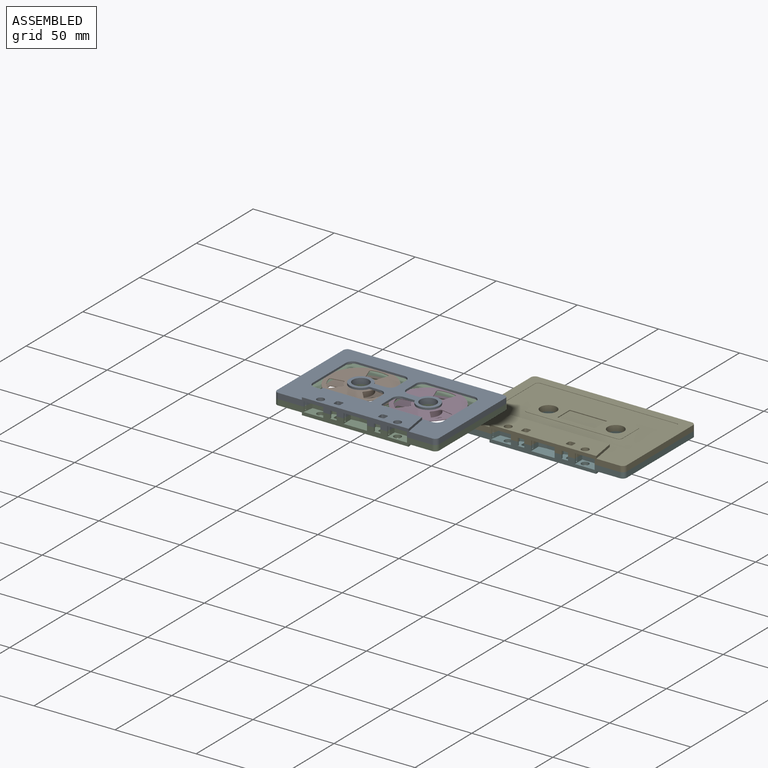
[diagram: assembled view]
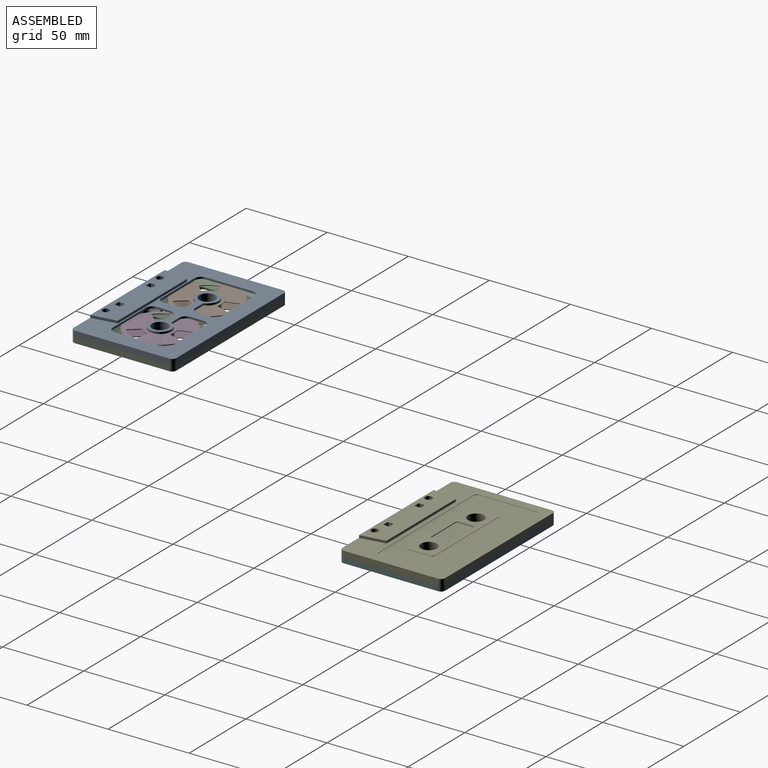
[diagram: assembled view, second angle]
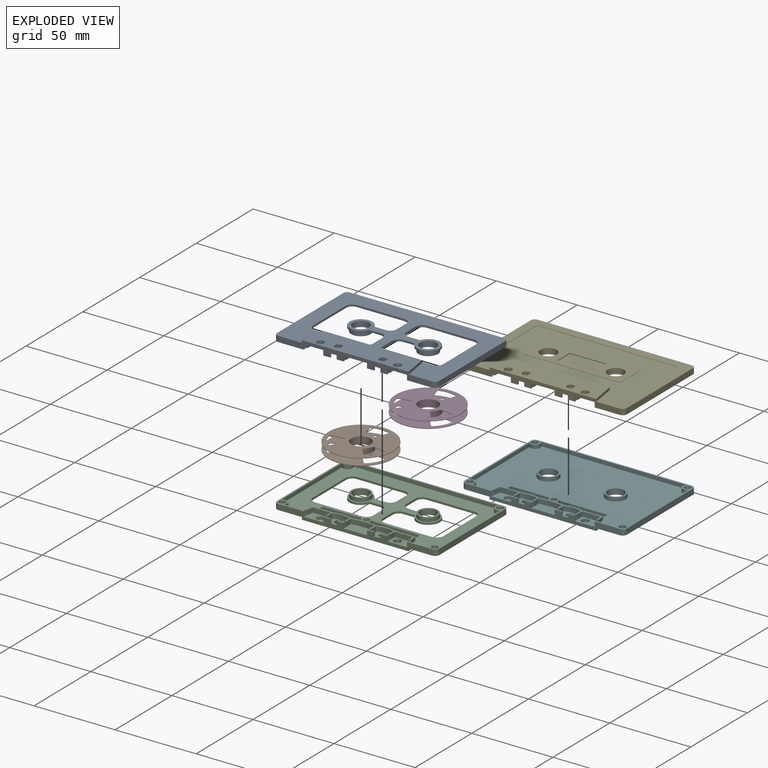
[diagram: exploded view]
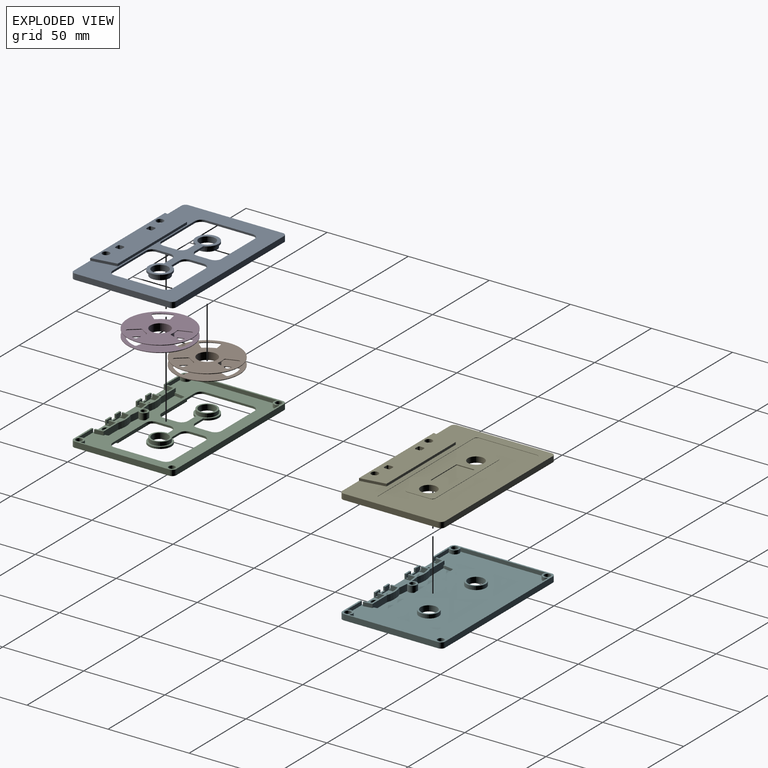
[diagram: exploded view, second angle]
ASSEMBLY  parts=6 mates=4
PART A: 142 faces, bbox 100x63.3x5 mm
  f0: plane 98x61.31mm, normal (0,0,1), area 2566.6mm2, adj f11,f12,f13,f14,f15,f62,f70,f79
  f1: plane 4.24x1mm, normal (0,0,1), area 4.2mm2, adj f6,f64,f72,f104
  f2: plane 100x63.31mm, normal (0,0,1), area 291.8mm2, adj f6,f11,f12,f13,f14,f15,f37,f38
  f3: plane 65.18x10.8mm, normal (0,0,1), area 102.5mm2, adj f7,f8,f9,f10,f60,f61,f62,f63
  f4: plane 4.25x1mm, normal (0,0,1), area 4.3mm2, adj f6,f68,f71,f109
  f5: plane 4.25x1mm, normal (0,0,1), area 4.2mm2, adj f6,f67,f71,f108
  f6: plane 95x5mm, normal (0,-1,0), area 296.4mm2, adj f1,f2,f4,f5,f17,f18,f19,f20
  f7: plane 5.5x3mm, normal (1,0,0), area 14mm2, adj f3,f48,f72,f73,f112,f113
  f8: plane 5.5x3mm, normal (1,0,0), area 14.1mm2, adj f3,f21,f60,f71,f110,f111
  f9: plane 5.5x3mm, normal (-1,0,0), area 14.1mm2, adj f3,f21,f60,f71,f105,f106
  f10: plane 5.5x3mm, normal (-1,0,0), area 13.9mm2, adj f3,f48,f72,f73,f100,f101
  f11: plane 13.02x2.3mm, normal (0,1,0), area 29.9mm2, adj f0,f2,f70,f88
  f12: plane 13.02x2.3mm, normal (0,1,0), area 29.9mm2, adj f0,f2,f62,f89
  f13: plane 52.84x2.3mm, normal (-1,0,0), area 121.5mm2, adj f0,f2,f89,f90
  f14: plane 89.53x2.3mm, normal (0,-1,0), area 205.9mm2, adj f0,f2,f90,f91
  f15: plane 52.84x2.3mm, normal (1,0,0), area 121.5mm2, adj f0,f2,f88,f91
  f16: plane 12x12mm, normal (0,0,1), area 34.6mm2, adj f53,f86
  f17: plane 4.26x1mm, normal (0,0,1), area 4.3mm2, adj f6,f65,f72,f103
  f18: plane 12.17x6.5mm, normal (0,0,1), area 59.9mm2, adj f6,f43,f62,f63,f64
  f19: plane 12.17x6.5mm, normal (0,0,1), area 59.9mm2, adj f6,f44,f68,f69,f70
  f20: plane 14.48x7.1mm, normal (0,0,1), area 99.9mm2, adj f6,f65,f66,f67
  f21: plane 10.5x6.37mm, normal (0,0,1), area 48.7mm2, adj f8,f9,f23,f24,f25,f26,f27,f28
  f22: plane 100x63.31mm, normal (0,0,-1), area 2898.6mm2, adj f6,f37,f38,f39,f40,f41,f42,f46
  f23: cylinder r=1mm len=2mm, axis (0,0,1), area 3.1mm2, adj f21,f24,f47,f49
  f24: plane 2x2mm, normal (0,1,0), area 4mm2, adj f21,f23,f25,f49
  f25: cylinder r=1mm len=2mm, axis (0,0,1), area 3.1mm2, adj f21,f24,f26,f49
  f26: plane 2x2mm, normal (1,0,0), area 4mm2, adj f21,f25,f27,f49
  f27: cylinder r=1mm len=2mm, axis (0,0,1), area 3.1mm2, adj f21,f26,f28,f49
  f28: plane 2x2mm, normal (0,-1,0), area 4mm2, adj f21,f27,f29,f49
  f29: cylinder r=1mm len=2mm, axis (0,0,1), area 3.1mm2, adj f21,f28,f47,f49
  f30: plane 2x2mm, normal (0,-1,0), area 4mm2, adj f31,f45,f48,f49
  f31: cylinder r=1mm len=2mm, axis (0,0,1), area 3.1mm2, adj f30,f32,f48,f49
  f32: plane 2x2mm, normal (-1,0,0), area 4mm2, adj f31,f33,f48,f49
  f33: cylinder r=1mm len=2mm, axis (0,0,1), area 3.1mm2, adj f32,f34,f48,f49
  f34: plane 2x2mm, normal (0,1,0), area 4mm2, adj f33,f35,f48,f49
  f35: cylinder r=1mm len=2mm, axis (0,0,1), area 3.1mm2, adj f34,f36,f48,f49
  f36: plane 2x2mm, normal (1,0,0), area 4mm2, adj f35,f45,f48,f49
  f37: cylinder r=2.5mm len=3.5mm, axis (0,0,1), area 13.7mm2, adj f2,f6,f22,f38
  f38: plane 58.31x3.5mm, normal (1,0,0), area 204.1mm2, adj f2,f22,f37,f39
  f39: cylinder r=2.5mm len=3.5mm, axis (0,0,1), area 13.7mm2, adj f2,f22,f38,f40
  f40: plane 95x3.5mm, normal (0,1,0), area 332.5mm2, adj f2,f22,f39,f41
  f41: cylinder r=2.5mm len=3.5mm, axis (0,0,1), area 13.7mm2, adj f2,f22,f40,f42
  f42: plane 58.31x3.5mm, normal (-1,0,0), area 204.1mm2, adj f2,f22,f41,f46
  f43: cylinder r=2.25mm len=4.5mm, axis (0,0,1), area 28.3mm2, adj f18,f49
  f44: cylinder r=2.25mm len=4.5mm, axis (0,0,1), area 28.3mm2, adj f19,f49
  f45: cylinder r=1mm len=2mm, axis (0,0,1), area 3.1mm2, adj f30,f36,f48,f49
  f46: cylinder r=2.5mm len=3.5mm, axis (0,0,1), area 13.7mm2, adj f2,f6,f22,f42
  f47: plane 2x2mm, normal (-1,0,0), area 4mm2, adj f21,f23,f29,f49
  f48: plane 10.5x6.37mm, normal (0,0,1), area 48.7mm2, adj f7,f10,f30,f31,f32,f33,f34,f35
  f49: plane 65.84x15.31mm, normal (0,0,-1), area 908.9mm2, adj f6,f23,f24,f25,f26,f27,f28,f29
  f50: plane 61x1.5mm, normal (0,1,0), area 91.5mm2, adj f22,f49,f51,f52
  f51: plane 15.31x2.42mm, normal (-0.99,0.16,0), area 23.2mm2, adj f6,f22,f49,f50
  f52: plane 15.31x2.42mm, normal (0.99,0.16,0), area 23.2mm2, adj f6,f22,f49,f50
  f53: cylinder r=5mm len=10mm, axis (0,0,1), area 110mm2, adj f16,f22
  f54: cylinder r=5mm len=10mm, axis (0,0,1), area 110mm2, adj f22,f55
  f55: plane 12x12mm, normal (0,0,1), area 34.6mm2, adj f54,f87
  f56: cylinder r=2mm len=4mm, axis (0,0,-1), area 37.7mm2, adj f2,f78
  f57: cylinder r=2mm len=4mm, axis (0,0,-1), area 37.7mm2, adj f2,f77
  f58: cylinder r=2mm len=4mm, axis (0,0,-1), area 37.7mm2, adj f2,f76
  f59: cylinder r=2mm len=4mm, axis (0,0,-1), area 37.7mm2, adj f2,f75
  f60: cylinder r=16.26mm len=10.5mm, axis (0,0,-1), area 32.1mm2, adj f3,f8,f9,f21
  f61: cylinder r=1.8mm len=3.59mm, axis (0,0,-1), area 33.9mm2, adj f3,f74
  f62: plane 6.5x3mm, normal (-0.99,-0.16,0), area 17mm2, adj f0,f2,f3,f6,f12,f18,f63,f99
  f63: plane 11.14x3mm, normal (0,-1,0), area 33.4mm2, adj f3,f18,f62,f64
  f64: plane 6.5x3mm, normal (1,0,0), area 16.9mm2, adj f1,f3,f6,f18,f63,f72,f100,f101
  f65: plane 6.5x3mm, normal (-1,0,0), area 17mm2, adj f3,f6,f17,f20,f66,f72,f112,f113
  f66: cylinder r=43.69mm len=14.48mm, axis (0,0,-1), area 43.6mm2, adj f3,f20,f65,f67
  f67: plane 6.5x3mm, normal (1,0,0), area 17mm2, adj f3,f5,f6,f20,f66,f71,f105,f106
  f68: plane 6.5x3mm, normal (-1,0,0), area 17.1mm2, adj f3,f4,f6,f19,f69,f71,f110,f111
  f69: plane 11.14x3mm, normal (0,-1,0), area 33.4mm2, adj f3,f19,f68,f70
  f70: plane 6.5x3mm, normal (0.99,-0.16,0), area 17.4mm2, adj f0,f2,f3,f6,f11,f19,f69,f98
  f71: plane 12.5x3mm, normal (0,1,0), area 26.9mm2, adj f4,f5,f8,f9,f21,f67,f68,f106
  f72: plane 12.5x3mm, normal (0,1,0), area 26.9mm2, adj f1,f7,f10,f17,f48,f64,f65,f101
  f73: cylinder r=16.26mm len=10.5mm, axis (0,0,-1), area 32.1mm2, adj f3,f7,f10,f48
  f74: plane 3.59x3.59mm, normal (0,0,1), area 10.1mm2, adj f61
  f75: plane 4x4mm, normal (0,0,1), area 12.6mm2, adj f59
  f76: plane 4x4mm, normal (0,0,1), area 12.6mm2, adj f58
  f77: plane 4x4mm, normal (0,0,1), area 12.6mm2, adj f57
  f78: plane 4x4mm, normal (0,0,1), area 12.6mm2, adj f56
  f79: plane 12.83x4mm, normal (0,1,0), area 49.6mm2, adj f0,f3,f80,f84,f92,f96
  f80: plane 61.44x6.9mm, normal (0,0,1), area 370.6mm2, adj f79,f81,f82,f83,f84,f85,f92,f93
  f81: plane 12.83x4mm, normal (0,1,0), area 49.6mm2, adj f0,f3,f80,f85,f94,f97
  f82: cylinder r=44.69mm len=5.81mm, axis (0,0,-1), area 23.4mm2, adj f3,f80,f92,f93
  f83: plane 59.29x1.7mm, normal (0,-1,0), area 100.8mm2, adj f0,f80,f84,f85
  f84: plane 6.81x1.7mm, normal (0.99,-0.16,0), area 11.7mm2, adj f0,f79,f80,f83
  f85: plane 6.81x1.7mm, normal (-0.99,-0.16,0), area 11.7mm2, adj f0,f80,f81,f83
  f86: cylinder r=6mm len=12mm, axis (0,0,1), area 86.7mm2, adj f0,f16
  f87: cylinder r=6mm len=12mm, axis (0,0,1), area 86.7mm2, adj f0,f55
  f88: cylinder r=3mm len=5mm, axis (0,0,-1), area 20.9mm2, adj f0,f2,f11,f15
  f89: cylinder r=3mm len=5mm, axis (0,0,-1), area 20.9mm2, adj f0,f2,f12,f13
  f90: cylinder r=3mm len=5mm, axis (0,0,-1), area 20.9mm2, adj f0,f2,f13,f14
  f91: cylinder r=3mm len=5mm, axis (0,0,-1), area 20.9mm2, adj f0,f2,f14,f15
  f92: cylinder r=17.26mm len=11.08mm, axis (0,0,-1), area 45.1mm2, adj f3,f79,f80,f82
  f93: cylinder r=2.8mm len=5.59mm, axis (0,0,-1), area 52.3mm2, adj f3,f80,f82,f95
  f94: plane 5.33x2.3mm, normal (0.99,0.16,0), area 12.4mm2, adj f0,f3,f81,f99
  f95: cylinder r=44.69mm len=5.81mm, axis (0,0,-1), area 23.4mm2, adj f3,f80,f93,f97
  f96: plane 5.5x2.3mm, normal (-0.99,0.16,0), area 12.8mm2, adj f0,f3,f79,f98
  f97: cylinder r=17.26mm len=11.08mm, axis (0,0,-1), area 45.1mm2, adj f3,f80,f81,f95
  f98: plane 2.3x1.01mm, normal (0,-1,0), area 2.3mm2, adj f0,f3,f70,f96
  f99: plane 2.3x1.01mm, normal (0,-1,0), area 2.3mm2, adj f0,f3,f62,f94
  f100: plane 2.3x1mm, normal (0,-1,0), area 2.3mm2, adj f3,f10,f64,f101
  f101: plane 1.14x1mm, normal (0,0,1), area 1.1mm2, adj f10,f64,f72,f100
  f102: plane 4x1mm, normal (0,0,1), area 4mm2, adj f6,f72,f103,f104
  f103: plane 2.3x1mm, normal (1,0,0), area 2.3mm2, adj f6,f17,f72,f102
  f104: plane 2.3x1mm, normal (-1,0,0), area 2.3mm2, adj f1,f6,f72,f102
  f105: plane 2.3x1mm, normal (0,-1,0), area 2.3mm2, adj f3,f9,f67,f106
  f106: plane 1.07x1mm, normal (0,0,1), area 1.1mm2, adj f9,f67,f71,f105
  f107: plane 4x1mm, normal (0,0,1), area 4mm2, adj f6,f71,f108,f109
  f108: plane 2.3x1mm, normal (-1,0,0), area 2.3mm2, adj f5,f6,f71,f107
  f109: plane 2.3x1mm, normal (1,0,0), area 2.3mm2, adj f4,f6,f71,f107
  f110: plane 2.3x1mm, normal (0,-1,0), area 2.3mm2, adj f3,f8,f68,f111
  f111: plane 1.04x1mm, normal (0,0,1), area 1mm2, adj f8,f68,f71,f110
  f112: plane 1.11x1mm, normal (0,0,1), area 1.1mm2, adj f7,f65,f72,f113
  f113: plane 2.3x1mm, normal (0,-1,0), area 2.3mm2, adj f3,f7,f65,f112
  f114: plane 29.15x1.2mm, normal (0,-1,0), area 35mm2, adj f0,f22,f115,f127
  f115: cylinder r=4mm len=4mm, axis (0,0,1), area 7.5mm2, adj f0,f22,f114,f116
  f116: plane 28.96x1.2mm, normal (1,0,0), area 34.7mm2, adj f0,f22,f115,f117
  f117: cylinder r=4mm len=4mm, axis (0,0,1), area 7.5mm2, adj f0,f22,f116,f118
  f118: plane 29.15x1.2mm, normal (0,1,0), area 35mm2, adj f0,f22,f117,f119
  f119: cylinder r=4mm len=4mm, axis (0,0,1), area 7.5mm2, adj f0,f22,f118,f120
  f120: plane 8.23x1.2mm, normal (-1,0,0), area 9.9mm2, adj f0,f22,f119,f121
  f121: cylinder r=4mm len=4mm, axis (0,0,1), area 7.5mm2, adj f0,f22,f120,f122
  f122: plane 7.12x1.2mm, normal (0,-1,0), area 8.5mm2, adj f0,f22,f121,f123
  f123: cylinder r=7mm len=14mm, axis (0,0,1), area 47.3mm2, adj f0,f22,f122,f124
  f124: plane 7.12x1.2mm, normal (0,1,0), area 8.5mm2, adj f0,f22,f123,f125
  f125: cylinder r=4mm len=4mm, axis (0,0,1), area 7.5mm2, adj f0,f22,f124,f126
  f126: plane 8.23x1.2mm, normal (-1,0,0), area 9.9mm2, adj f0,f22,f125,f127
  f127: cylinder r=4mm len=4mm, axis (0,0,1), area 7.5mm2, adj f0,f22,f114,f126
  f128: plane 28.96x1.2mm, normal (-1,0,0), area 34.7mm2, adj f0,f22,f129,f141
  f129: cylinder r=4mm len=4mm, axis (0,0,1), area 7.5mm2, adj f0,f22,f128,f130
  f130: plane 29.15x1.2mm, normal (0,-1,0), area 35mm2, adj f0,f22,f129,f131
  f131: cylinder r=4mm len=4mm, axis (0,0,1), area 7.5mm2, adj f0,f22,f130,f132
  f132: plane 8.23x1.2mm, normal (1,0,0), area 9.9mm2, adj f0,f22,f131,f133
  f133: cylinder r=4mm len=4mm, axis (0,0,1), area 7.5mm2, adj f0,f22,f132,f134
  f134: plane 7.12x1.2mm, normal (0,1,0), area 8.5mm2, adj f0,f22,f133,f135
  f135: cylinder r=7mm len=14mm, axis (0,0,1), area 47.3mm2, adj f0,f22,f134,f136
  f136: plane 7.12x1.2mm, normal (0,-1,0), area 8.5mm2, adj f0,f22,f135,f137
  f137: cylinder r=4mm len=4mm, axis (0,0,1), area 7.5mm2, adj f0,f22,f136,f138
  f138: plane 8.23x1.2mm, normal (1,0,0), area 9.9mm2, adj f0,f22,f137,f139
  f139: cylinder r=4mm len=4mm, axis (0,0,1), area 7.5mm2, adj f0,f22,f138,f140
  f140: plane 29.15x1.2mm, normal (0,1,0), area 35mm2, adj f0,f22,f139,f141
  f141: cylinder r=4mm len=4mm, axis (0,0,1), area 7.5mm2, adj f0,f22,f128,f140
PART B: 56 faces, bbox 40x40x4.5 mm
  f0: plane 40x40mm, normal (0,0,1), area 903.9mm2, adj f4,f5,f32,f33,f34,f35,f36,f37
  f1: plane 40x40mm, normal (0,0,-1), area 855mm2, adj f4,f6,f32,f33,f34,f35,f36,f37
  f2: plane 40x40mm, normal (0,0,-1), area 903.9mm2, adj f5,f7,f8,f9,f10,f11,f12,f13
  f3: plane 40x40mm, normal (0,0,1), area 855mm2, adj f6,f7,f8,f9,f10,f11,f12,f13
  f4: cylinder r=20mm len=40mm, axis (0,0,-1), area 40.8mm2, adj f0,f1
  f5: cylinder r=6mm len=12mm, axis (0,0,-1), area 169.6mm2, adj f0,f2
  f6: cylinder r=7.18mm len=14.36mm, axis (0,0,-1), area 173.7mm2, adj f1,f3
  f7: cylinder r=20mm len=40mm, axis (0,0,-1), area 40.8mm2, adj f2,f3
  f8: cylinder r=1mm len=1.35mm, axis (0,0,-1), area 0.5mm2, adj f2,f3,f9,f15
  f9: plane 5.11x4.3mm, normal (-0.76,0.64,0), area 2.2mm2, adj f2,f3,f8,f10
  f10: cylinder r=1mm len=1.45mm, axis (0,0,-1), area 0.5mm2, adj f2,f3,f9,f11
  f11: cylinder r=17.49mm len=8.72mm, axis (0,0,-1), area 3.3mm2, adj f2,f3,f10,f12
  f12: cylinder r=1mm len=1.21mm, axis (0,0,-1), area 0.5mm2, adj f2,f3,f11,f13
  f13: plane 6.57x1.17mm, normal (0.18,-0.98,0), area 2.2mm2, adj f2,f3,f12,f14
  f14: cylinder r=1mm len=1.14mm, axis (0,0,-1), area 0.5mm2, adj f2,f3,f13,f15
  f15: cylinder r=8.83mm len=3.85mm, axis (0,0,-1), area 1.5mm2, adj f2,f3,f8,f14
  f16: cylinder r=1mm len=1.14mm, axis (0,0,-1), area 0.5mm2, adj f2,f3,f17,f23
  f17: plane 6.57x1.17mm, normal (-0.18,-0.98,0), area 2.2mm2, adj f2,f3,f16,f18
  f18: cylinder r=1mm len=1.21mm, axis (0,0,-1), area 0.5mm2, adj f2,f3,f17,f19
  f19: cylinder r=17.49mm len=8.72mm, axis (0,0,-1), area 3.3mm2, adj f2,f3,f18,f20
  f20: cylinder r=1mm len=1.45mm, axis (0,0,-1), area 0.5mm2, adj f2,f3,f19,f21
  f21: plane 5.11x4.3mm, normal (0.76,0.64,0), area 2.2mm2, adj f2,f3,f20,f22
  f22: cylinder r=1mm len=1.35mm, axis (0,0,-1), area 0.5mm2, adj f2,f3,f21,f23
  f23: cylinder r=8.83mm len=3.85mm, axis (0,0,-1), area 1.5mm2, adj f2,f3,f16,f22
  f24: cylinder r=1mm len=1.19mm, axis (0,0,-1), area 0.5mm2, adj f2,f3,f25,f31
  f25: plane 6.28x2.27mm, normal (0.94,0.34,0), area 2.2mm2, adj f2,f3,f24,f26
  f26: cylinder r=1mm len=1.3mm, axis (0,0,-1), area 0.5mm2, adj f2,f3,f25,f27
  f27: cylinder r=17.49mm len=10.07mm, axis (0,0,-1), area 3.3mm2, adj f2,f3,f26,f28
  f28: cylinder r=1mm len=1.3mm, axis (0,0,-1), area 0.5mm2, adj f2,f3,f27,f29
  f29: plane 6.28x2.27mm, normal (-0.94,0.34,0), area 2.2mm2, adj f2,f3,f28,f30
  f30: cylinder r=1mm len=1.19mm, axis (0,0,-1), area 0.5mm2, adj f2,f3,f29,f31
  f31: cylinder r=8.83mm len=4.45mm, axis (0,0,-1), area 1.5mm2, adj f2,f3,f24,f30
  f32: cylinder r=8.83mm len=3.85mm, axis (0,0,-1), area 1.5mm2, adj f0,f1,f33,f39
  f33: cylinder r=1mm len=1.14mm, axis (0,0,-1), area 0.5mm2, adj f0,f1,f32,f34
  f34: plane 6.57x1.17mm, normal (0.18,-0.98,0), area 2.2mm2, adj f0,f1,f33,f35
  f35: cylinder r=1mm len=1.21mm, axis (0,0,-1), area 0.5mm2, adj f0,f1,f34,f36
  f36: cylinder r=17.49mm len=8.72mm, axis (0,0,-1), area 3.3mm2, adj f0,f1,f35,f37
  f37: cylinder r=1mm len=1.45mm, axis (0,0,-1), area 0.5mm2, adj f0,f1,f36,f38
  f38: plane 5.11x4.3mm, normal (-0.76,0.64,0), area 2.2mm2, adj f0,f1,f37,f39
  f39: cylinder r=1mm len=1.35mm, axis (0,0,-1), area 0.5mm2, adj f0,f1,f32,f38
  f40: cylinder r=8.83mm len=3.85mm, axis (0,0,-1), area 1.5mm2, adj f0,f1,f41,f47
  f41: cylinder r=1mm len=1.35mm, axis (0,0,-1), area 0.5mm2, adj f0,f1,f40,f42
  f42: plane 5.11x4.3mm, normal (0.76,0.64,0), area 2.2mm2, adj f0,f1,f41,f43
  f43: cylinder r=1mm len=1.45mm, axis (0,0,-1), area 0.5mm2, adj f0,f1,f42,f44
  f44: cylinder r=17.49mm len=8.72mm, axis (0,0,-1), area 3.3mm2, adj f0,f1,f43,f45
  f45: cylinder r=1mm len=1.21mm, axis (0,0,-1), area 0.5mm2, adj f0,f1,f44,f46
  f46: plane 6.57x1.17mm, normal (-0.18,-0.98,0), area 2.2mm2, adj f0,f1,f45,f47
  f47: cylinder r=1mm len=1.14mm, axis (0,0,-1), area 0.5mm2, adj f0,f1,f40,f46
  f48: cylinder r=8.83mm len=4.45mm, axis (0,0,-1), area 1.5mm2, adj f0,f1,f49,f55
  f49: cylinder r=1mm len=1.19mm, axis (0,0,-1), area 0.5mm2, adj f0,f1,f48,f50
  f50: plane 6.28x2.27mm, normal (-0.94,0.34,0), area 2.2mm2, adj f0,f1,f49,f51
  f51: cylinder r=1mm len=1.3mm, axis (0,0,-1), area 0.5mm2, adj f0,f1,f50,f52
  f52: cylinder r=17.49mm len=10.07mm, axis (0,0,-1), area 3.3mm2, adj f0,f1,f51,f53
  f53: cylinder r=1mm len=1.3mm, axis (0,0,-1), area 0.5mm2, adj f0,f1,f52,f54
  f54: plane 6.28x2.27mm, normal (0.94,0.34,0), area 2.2mm2, adj f0,f1,f53,f55
  f55: cylinder r=1mm len=1.19mm, axis (0,0,-1), area 0.5mm2, adj f0,f1,f48,f54
PART C: same geometry as A
PART D: same geometry as B
PART E: 137 faces, bbox 100x63.3x5 mm
  f0: plane 4.24x1mm, normal (0,0,1), area 4.2mm2, adj f5,f84,f92,f127
  f1: plane 100x63.31mm, normal (0,0,1), area 291.8mm2, adj f5,f10,f11,f12,f13,f14,f43,f44
  f2: plane 65.18x10.8mm, normal (0,0,1), area 102.5mm2, adj f6,f7,f8,f9,f80,f81,f82,f83
  f3: plane 4.25x1mm, normal (0,0,1), area 4.3mm2, adj f5,f88,f91,f132
  f4: plane 4.25x1mm, normal (0,0,1), area 4.2mm2, adj f5,f87,f91,f131
  f5: plane 95x5mm, normal (0,-1,0), area 296.4mm2, adj f0,f1,f3,f4,f16,f19,f20,f21
  f6: plane 5.5x3mm, normal (1,0,0), area 14mm2, adj f2,f55,f92,f93,f135,f136
  f7: plane 5.5x3mm, normal (1,0,0), area 14.1mm2, adj f2,f22,f80,f91,f133,f134
  f8: plane 5.5x3mm, normal (-1,0,0), area 14.1mm2, adj f2,f22,f80,f91,f128,f129
  f9: plane 5.5x3mm, normal (-1,0,0), area 13.9mm2, adj f2,f55,f92,f93,f123,f124
  f10: plane 13.02x2.3mm, normal (0,1,0), area 29.9mm2, adj f1,f90,f110,f120
  f11: plane 13.02x2.3mm, normal (0,1,0), area 29.9mm2, adj f1,f82,f111,f120
  f12: plane 52.84x2.3mm, normal (-1,0,0), area 121.5mm2, adj f1,f111,f112,f120
  f13: plane 89.53x2.3mm, normal (0,-1,0), area 205.9mm2, adj f1,f112,f113,f120
  f14: plane 52.84x2.3mm, normal (1,0,0), area 121.5mm2, adj f1,f110,f113,f120
  f15: plane 12x12mm, normal (0,0,1), area 34.6mm2, adj f72,f108
  f16: plane 4.26x1mm, normal (0,0,1), area 4.3mm2, adj f5,f85,f92,f126
  f17: plane 84x0.2mm, normal (0,-1,0), area 16.8mm2, adj f23,f39,f40,f94
  f18: plane 84x0.2mm, normal (0,1,0), area 16.8mm2, adj f23,f42,f52,f94
  f19: plane 12.17x6.5mm, normal (0,0,1), area 59.9mm2, adj f5,f49,f82,f83,f84
  f20: plane 12.17x6.5mm, normal (0,0,1), area 59.9mm2, adj f5,f50,f88,f89,f90
  f21: plane 14.48x7.1mm, normal (0,0,1), area 99.9mm2, adj f5,f85,f86,f87
  f22: plane 10.5x6.37mm, normal (0,0,1), area 48.7mm2, adj f7,f8,f24,f25,f26,f27,f28,f29
  f23: plane 100x63.31mm, normal (0,0,-1), area 1882.1mm2, adj f5,f17,f18,f38,f39,f40,f41,f42
  f24: cylinder r=1mm len=2mm, axis (0,0,1), area 3.1mm2, adj f22,f25,f54,f56
  f25: plane 2x2mm, normal (0,1,0), area 4mm2, adj f22,f24,f26,f56
  f26: cylinder r=1mm len=2mm, axis (0,0,1), area 3.1mm2, adj f22,f25,f27,f56
  f27: plane 2x2mm, normal (1,0,0), area 4mm2, adj f22,f26,f28,f56
  f28: cylinder r=1mm len=2mm, axis (0,0,1), area 3.1mm2, adj f22,f27,f29,f56
  f29: plane 2x2mm, normal (0,-1,0), area 4mm2, adj f22,f28,f30,f56
  f30: cylinder r=1mm len=2mm, axis (0,0,1), area 3.1mm2, adj f22,f29,f54,f56
  f31: plane 2x2mm, normal (0,-1,0), area 4mm2, adj f32,f51,f55,f56
  f32: cylinder r=1mm len=2mm, axis (0,0,1), area 3.1mm2, adj f31,f33,f55,f56
  f33: plane 2x2mm, normal (-1,0,0), area 4mm2, adj f32,f34,f55,f56
  f34: cylinder r=1mm len=2mm, axis (0,0,1), area 3.1mm2, adj f33,f35,f55,f56
  f35: plane 2x2mm, normal (0,1,0), area 4mm2, adj f34,f36,f55,f56
  f36: cylinder r=1mm len=2mm, axis (0,0,1), area 3.1mm2, adj f35,f37,f55,f56
  f37: plane 2x2mm, normal (1,0,0), area 4mm2, adj f36,f51,f55,f56
  f38: plane 35.5x0.2mm, normal (1,0,0), area 7.1mm2, adj f23,f39,f52,f94
  f39: cylinder r=2mm len=2mm, axis (0,0,1), area 0.6mm2, adj f17,f23,f38,f94
  f40: cylinder r=2mm len=2mm, axis (0,0,1), area 0.6mm2, adj f17,f23,f41,f94
  f41: plane 35.5x0.2mm, normal (-1,0,0), area 7.1mm2, adj f23,f40,f42,f94
  f42: cylinder r=2mm len=2mm, axis (0,0,1), area 0.6mm2, adj f18,f23,f41,f94
  f43: cylinder r=2.5mm len=3.5mm, axis (0,0,1), area 13.7mm2, adj f1,f5,f23,f44
  f44: plane 58.31x3.5mm, normal (1,0,0), area 204.1mm2, adj f1,f23,f43,f45
  f45: cylinder r=2.5mm len=3.5mm, axis (0,0,1), area 13.7mm2, adj f1,f23,f44,f46
  f46: plane 95x3.5mm, normal (0,1,0), area 332.5mm2, adj f1,f23,f45,f47
  f47: cylinder r=2.5mm len=3.5mm, axis (0,0,1), area 13.7mm2, adj f1,f23,f46,f48
  f48: plane 58.31x3.5mm, normal (-1,0,0), area 204.1mm2, adj f1,f23,f47,f53
  f49: cylinder r=2.25mm len=4.5mm, axis (0,0,1), area 28.3mm2, adj f19,f56
  f50: cylinder r=2.25mm len=4.5mm, axis (0,0,1), area 28.3mm2, adj f20,f56
  f51: cylinder r=1mm len=2mm, axis (0,0,1), area 3.1mm2, adj f31,f37,f55,f56
  f52: cylinder r=2mm len=2mm, axis (0,0,1), area 0.6mm2, adj f18,f23,f38,f94
  f53: cylinder r=2.5mm len=3.5mm, axis (0,0,1), area 13.7mm2, adj f1,f5,f23,f48
  f54: plane 2x2mm, normal (-1,0,0), area 4mm2, adj f22,f24,f30,f56
  f55: plane 10.5x6.37mm, normal (0,0,1), area 48.7mm2, adj f6,f9,f31,f32,f33,f34,f35,f36
  f56: plane 65.84x15.31mm, normal (0,0,-1), area 908.9mm2, adj f5,f24,f25,f26,f27,f28,f29,f30
  f57: plane 61x1.5mm, normal (0,1,0), area 91.5mm2, adj f23,f56,f58,f59
  f58: plane 15.31x2.42mm, normal (-0.99,0.16,0), area 23.2mm2, adj f5,f23,f56,f57
  f59: plane 15.31x2.42mm, normal (0.99,0.16,0), area 23.2mm2, adj f5,f23,f56,f57
  f60: plane 55.5x0.2mm, normal (0,1,0), area 11.1mm2, adj f61,f67,f74,f94
  f61: cylinder r=2mm len=2mm, axis (0,0,1), area 0.6mm2, adj f60,f62,f74,f94
  f62: plane 13.96x0.2mm, normal (-1,0,0), area 2.8mm2, adj f61,f63,f74,f94
  f63: cylinder r=2mm len=2.04mm, axis (0,0,1), area 0.6mm2, adj f62,f64,f74,f94
  f64: plane 55.42x0.2mm, normal (0,-1,0), area 11.1mm2, adj f63,f65,f74,f94
  f65: cylinder r=2mm len=2.04mm, axis (0,0,1), area 0.6mm2, adj f64,f66,f74,f94
  f66: plane 13.96x0.2mm, normal (1,0,0), area 2.8mm2, adj f65,f67,f74,f94
  f67: cylinder r=2mm len=2mm, axis (0,0,1), area 0.6mm2, adj f60,f66,f74,f94
  f68: plane 23x0.5mm, normal (0,-1,0), area 11.5mm2, adj f69,f71,f74,f95
  f69: plane 11x0.5mm, normal (-1,0,0), area 5.5mm2, adj f68,f70,f74,f95
  f70: plane 23x0.5mm, normal (0,1,0), area 11.5mm2, adj f69,f71,f74,f95
  f71: plane 11x0.5mm, normal (1,0,0), area 5.5mm2, adj f68,f70,f74,f95
  f72: cylinder r=5mm len=10mm, axis (0,0,1), area 110mm2, adj f15,f74
  f73: cylinder r=5mm len=10mm, axis (0,0,1), area 110mm2, adj f74,f75
  f74: plane 59.5x17.96mm, normal (0,0,-1), area 655mm2, adj f60,f61,f62,f63,f64,f65,f66,f67
  f75: plane 12x12mm, normal (0,0,1), area 34.6mm2, adj f73,f109
  f76: cylinder r=2mm len=4mm, axis (0,0,-1), area 37.7mm2, adj f1,f100
  f77: cylinder r=2mm len=4mm, axis (0,0,-1), area 37.7mm2, adj f1,f99
  f78: cylinder r=2mm len=4mm, axis (0,0,-1), area 37.7mm2, adj f1,f98
  f79: cylinder r=2mm len=4mm, axis (0,0,-1), area 37.7mm2, adj f1,f97
  f80: cylinder r=16.26mm len=10.5mm, axis (0,0,-1), area 32.1mm2, adj f2,f7,f8,f22
  f81: cylinder r=1.8mm len=3.59mm, axis (0,0,-1), area 33.9mm2, adj f2,f96
  f82: plane 6.5x3mm, normal (-0.99,-0.16,0), area 17mm2, adj f1,f2,f5,f11,f19,f83,f120,f122
  f83: plane 11.14x3mm, normal (0,-1,0), area 33.4mm2, adj f2,f19,f82,f84
  f84: plane 6.5x3mm, normal (1,0,0), area 16.9mm2, adj f0,f2,f5,f19,f83,f92,f123,f124
  f85: plane 6.5x3mm, normal (-1,0,0), area 17mm2, adj f2,f5,f16,f21,f86,f92,f135,f136
  f86: cylinder r=43.69mm len=14.48mm, axis (0,0,-1), area 43.6mm2, adj f2,f21,f85,f87
  f87: plane 6.5x3mm, normal (1,0,0), area 17mm2, adj f2,f4,f5,f21,f86,f91,f128,f129
  f88: plane 6.5x3mm, normal (-1,0,0), area 17.1mm2, adj f2,f3,f5,f20,f89,f91,f133,f134
  f89: plane 11.14x3mm, normal (0,-1,0), area 33.4mm2, adj f2,f20,f88,f90
  f90: plane 6.5x3mm, normal (0.99,-0.16,0), area 17.4mm2, adj f1,f2,f5,f10,f20,f89,f120,f121
  f91: plane 12.5x3mm, normal (0,1,0), area 26.9mm2, adj f3,f4,f7,f8,f22,f87,f88,f129
  f92: plane 12.5x3mm, normal (0,1,0), area 26.9mm2, adj f0,f6,f9,f16,f55,f84,f85,f124
  f93: cylinder r=16.26mm len=10.5mm, axis (0,0,-1), area 32.1mm2, adj f2,f6,f9,f55
  f94: plane 88x39.5mm, normal (0,0,-1), area 2407.5mm2, adj f17,f18,f38,f39,f40,f41,f42,f52
  f95: plane 23x11mm, normal (0,0,-1), area 253mm2, adj f68,f69,f70,f71
  f96: plane 3.59x3.59mm, normal (0,0,1), area 10.1mm2, adj f81
  f97: plane 4x4mm, normal (0,0,1), area 12.6mm2, adj f79
  f98: plane 4x4mm, normal (0,0,1), area 12.6mm2, adj f78
  f99: plane 4x4mm, normal (0,0,1), area 12.6mm2, adj f77
  f100: plane 4x4mm, normal (0,0,1), area 12.6mm2, adj f76
  f101: plane 12.83x4mm, normal (0,1,0), area 49.6mm2, adj f2,f102,f106,f114,f118,f120
  f102: plane 61.44x6.9mm, normal (0,0,1), area 370.6mm2, adj f101,f103,f104,f105,f106,f107,f114,f115
  f103: plane 12.83x4mm, normal (0,1,0), area 49.6mm2, adj f2,f102,f107,f116,f119,f120
  f104: cylinder r=44.69mm len=5.81mm, axis (0,0,-1), area 23.4mm2, adj f2,f102,f114,f115
  f105: plane 59.29x1.7mm, normal (0,-1,0), area 100.8mm2, adj f102,f106,f107,f120
  f106: plane 6.81x1.7mm, normal (0.99,-0.16,0), area 11.7mm2, adj f101,f102,f105,f120
  f107: plane 6.81x1.7mm, normal (-0.99,-0.16,0), area 11.7mm2, adj f102,f103,f105,f120
  f108: cylinder r=6mm len=12mm, axis (0,0,1), area 86.7mm2, adj f15,f120
  f109: cylinder r=6mm len=12mm, axis (0,0,1), area 86.7mm2, adj f75,f120
  f110: cylinder r=3mm len=5mm, axis (0,0,-1), area 20.9mm2, adj f1,f10,f14,f120
  f111: cylinder r=3mm len=5mm, axis (0,0,-1), area 20.9mm2, adj f1,f11,f12,f120
  f112: cylinder r=3mm len=5mm, axis (0,0,-1), area 20.9mm2, adj f1,f12,f13,f120
  f113: cylinder r=3mm len=5mm, axis (0,0,-1), area 20.9mm2, adj f1,f13,f14,f120
  f114: cylinder r=17.26mm len=11.08mm, axis (0,0,-1), area 45.1mm2, adj f2,f101,f102,f104
  f115: cylinder r=2.8mm len=5.59mm, axis (0,0,-1), area 52.3mm2, adj f2,f102,f104,f117
  f116: plane 5.33x2.3mm, normal (0.99,0.16,0), area 12.4mm2, adj f2,f103,f120,f122
  f117: cylinder r=44.69mm len=5.81mm, axis (0,0,-1), area 23.4mm2, adj f2,f102,f115,f119
  f118: plane 5.5x2.3mm, normal (-0.99,0.16,0), area 12.8mm2, adj f2,f101,f120,f121
  f119: cylinder r=17.26mm len=11.08mm, axis (0,0,-1), area 45.1mm2, adj f2,f102,f103,f117
  f120: plane 98x61.31mm, normal (0,0,1), area 4865.6mm2, adj f10,f11,f12,f13,f14,f82,f90,f101
  f121: plane 2.3x1.01mm, normal (0,-1,0), area 2.3mm2, adj f2,f90,f118,f120
  f122: plane 2.3x1.01mm, normal (0,-1,0), area 2.3mm2, adj f2,f82,f116,f120
  f123: plane 2.3x1mm, normal (0,-1,0), area 2.3mm2, adj f2,f9,f84,f124
  f124: plane 1.14x1mm, normal (0,0,1), area 1.1mm2, adj f9,f84,f92,f123
  f125: plane 4x1mm, normal (0,0,1), area 4mm2, adj f5,f92,f126,f127
  f126: plane 2.3x1mm, normal (1,0,0), area 2.3mm2, adj f5,f16,f92,f125
  f127: plane 2.3x1mm, normal (-1,0,0), area 2.3mm2, adj f0,f5,f92,f125
  f128: plane 2.3x1mm, normal (0,-1,0), area 2.3mm2, adj f2,f8,f87,f129
  f129: plane 1.07x1mm, normal (0,0,1), area 1.1mm2, adj f8,f87,f91,f128
  f130: plane 4x1mm, normal (0,0,1), area 4mm2, adj f5,f91,f131,f132
  f131: plane 2.3x1mm, normal (-1,0,0), area 2.3mm2, adj f4,f5,f91,f130
  f132: plane 2.3x1mm, normal (1,0,0), area 2.3mm2, adj f3,f5,f91,f130
  f133: plane 2.3x1mm, normal (0,-1,0), area 2.3mm2, adj f2,f7,f88,f134
  f134: plane 1.04x1mm, normal (0,0,1), area 1mm2, adj f7,f88,f91,f133
  f135: plane 1.11x1mm, normal (0,0,1), area 1.1mm2, adj f6,f85,f92,f136
  f136: plane 2.3x1mm, normal (0,-1,0), area 2.3mm2, adj f2,f6,f85,f135
PART F: same geometry as E
PLACE A rot(axis=(0,1,0),180deg) t=(-14.95,-125.16,-0.2)mm
PLACE B t=(-114.95,-125.16,-6.15)mm
PLACE C t=(-114.95,-125.16,-6.2)mm
PLACE D t=(-73.45,-125.16,-6.15)mm
PLACE E rot(axis=(0,1,0),180deg) t=(-15.21,40.44,-78.68)mm
PLACE F t=(-115.21,40.44,-84.68)mm
MATE fastened A.f57 <-> C.f56  axis (0,0,-1) through (-111.95,-185.47,-3.2)mm
MATE revolute A.f54 <-> B.f4  axis (0,0,-1) through (-85.7,-153.87,-3.2)mm
MATE revolute D.f4 <-> A.f53  axis (0,0,-1) through (-44.2,-153.87,-3.2)mm
MATE fastened F.f79 <-> E.f78  axis (0,0,1) through (-112.21,37.44,-81.68)mm
